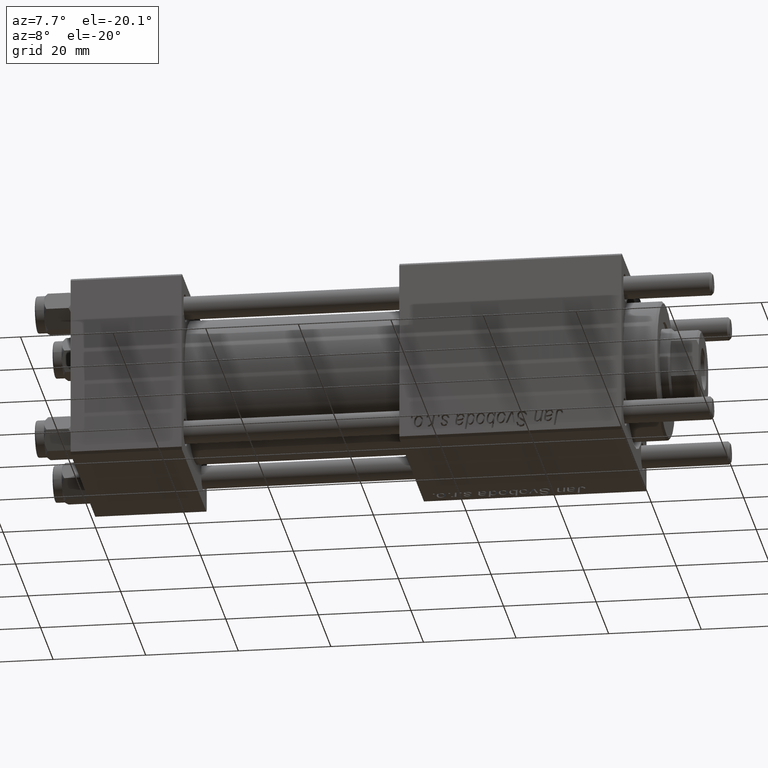
[diagram: clean part render]
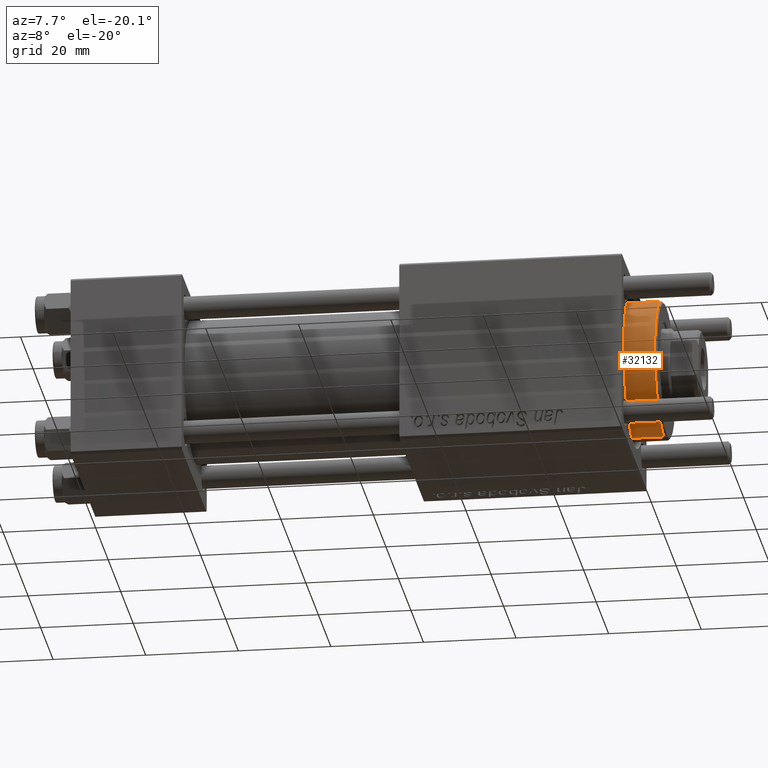
[diagram: same view with one face highlighted and labeled with its STEP entity id]
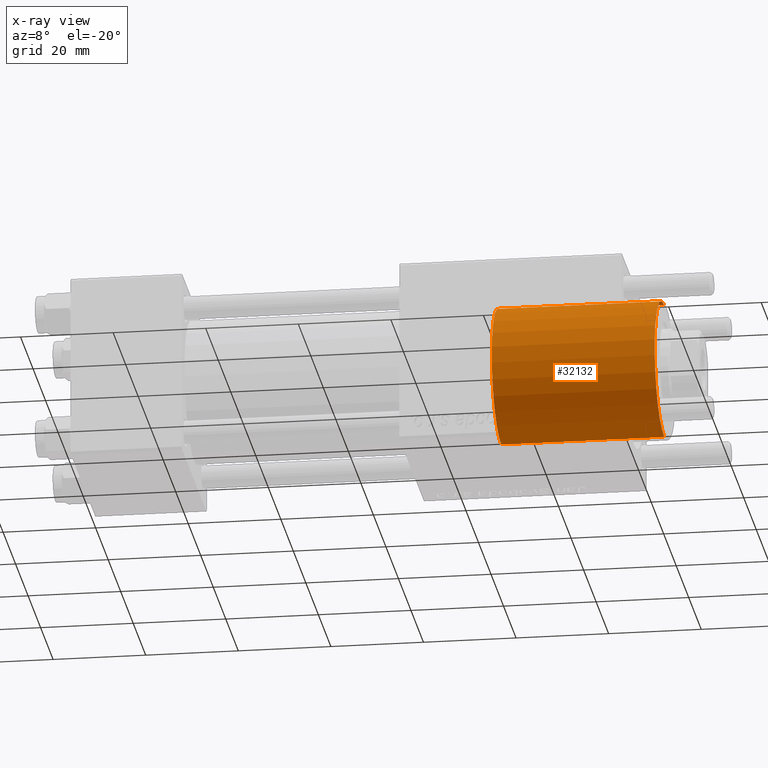
[diagram: x-ray of the same camera — body ghosted, the highlighted face saturated]
A machine part, auxiliary view. The second image highlights one B-rep face of the part: STEP entity #32132.
The next image is the same camera in x-ray: the body ghosted, the highlighted face saturated — about 0% of this face is hidden behind the body in this view.
In plain terms, the highlighted cylindrical surface (partial cylindrical patch) has radius 15 mm, axis along (-1, -0, 0).
Its self-contained STEP definition (entity closure, byte-faithful):
#2417 = FACE_OUTER_BOUND ( 'NONE', #7549, .T. ) ;
#5174 = CARTESIAN_POINT ( 'NONE',  ( 0.000000000000000000, 0.000000000000000000, 35.19999999999999574 ) ) ;
#5455 = EDGE_CURVE ( 'NONE', #55922, #46529, #11086, .T. ) ;
#6779 = DIRECTION ( 'NONE',  ( -0.000000000000000000, -0.000000000000000000, -1.000000000000000000 ) ) ;
#7549 = EDGE_LOOP ( 'NONE', ( #55498, #45363, #14214, #13501 ) ) ;
#9714 = CARTESIAN_POINT ( 'NONE',  ( -15.00000000000000000, 0.000000000000000000, 28.69999999999999929 ) ) ;
#10612 = DIRECTION ( 'NONE',  ( 1.000000000000000000, 0.000000000000000000, 0.000000000000000000 ) ) ;
#11086 = LINE ( 'NONE', #38001, #13369 ) ;
#13369 = VECTOR ( 'NONE', #6779, 1000.000000000000000 ) ;
#13501 = ORIENTED_EDGE ( 'NONE', *, *, #17017, .T. ) ;
#13734 = LINE ( 'NONE', #9714, #19222 ) ;
#14214 = ORIENTED_EDGE ( 'NONE', *, *, #34381, .T. ) ;
#17017 = EDGE_CURVE ( 'NONE', #19064, #46529, #36211, .T. ) ;
#17923 = AXIS2_PLACEMENT_3D ( 'NONE', #5174, #35855, #10612 ) ;
#18227 = CARTESIAN_POINT ( 'NONE',  ( -15.00000000000000000, 0.000000000000000000, 0.000000000000000000 ) ) ;
#18467 = EDGE_CURVE ( 'NONE', #55922, #40244, #51796, .T. ) ;
#19064 = VERTEX_POINT ( 'NONE', #18227 ) ;
#19222 = VECTOR ( 'NONE', #40388, 1000.000000000000000 ) ;
#19717 = AXIS2_PLACEMENT_3D ( 'NONE', #40006, #22803, #35144 ) ;
#22803 = DIRECTION ( 'NONE',  ( 0.000000000000000000, 0.000000000000000000, 1.000000000000000000 ) ) ;
#29250 = CARTESIAN_POINT ( 'NONE',  ( 15.00000000000000000, 1.836970198721029589E-15, 35.19999999999999574 ) ) ;
#32132 = ADVANCED_FACE ( 'NONE', ( #2417 ), #33098, .T. ) ;
#33098 = CYLINDRICAL_SURFACE ( 'NONE', #40171, 15.00000000000000000 ) ;
#33289 = CARTESIAN_POINT ( 'NONE',  ( 15.00000000000000000, 1.836970198721029589E-15, 0.000000000000000000 ) ) ;
#33943 = DIRECTION ( 'NONE',  ( -1.000000000000000000, 0.000000000000000000, 0.000000000000000000 ) ) ;
#34381 = EDGE_CURVE ( 'NONE', #40244, #19064, #13734, .T. ) ;
#35144 = DIRECTION ( 'NONE',  ( 1.000000000000000000, 0.000000000000000000, 0.000000000000000000 ) ) ;
#35855 = DIRECTION ( 'NONE',  ( 0.000000000000000000, 0.000000000000000000, -1.000000000000000000 ) ) ;
#36211 = CIRCLE ( 'NONE', #19717, 15.00000000000000000 ) ;
#38001 = CARTESIAN_POINT ( 'NONE',  ( 15.00000000000000000, 1.836970198721029589E-15, 28.69999999999999929 ) ) ;
#40006 = CARTESIAN_POINT ( 'NONE',  ( 0.000000000000000000, 0.000000000000000000, 0.000000000000000000 ) ) ;
#40171 = AXIS2_PLACEMENT_3D ( 'NONE', #50578, #55714, #33943 ) ;
#40244 = VERTEX_POINT ( 'NONE', #54420 ) ;
#40388 = DIRECTION ( 'NONE',  ( -0.000000000000000000, -0.000000000000000000, -1.000000000000000000 ) ) ;
#45363 = ORIENTED_EDGE ( 'NONE', *, *, #18467, .T. ) ;
#46529 = VERTEX_POINT ( 'NONE', #33289 ) ;
#50578 = CARTESIAN_POINT ( 'NONE',  ( 0.000000000000000000, 0.000000000000000000, 28.69999999999999929 ) ) ;
#51796 = CIRCLE ( 'NONE', #17923, 15.00000000000000000 ) ;
#54420 = CARTESIAN_POINT ( 'NONE',  ( -15.00000000000000000, 0.000000000000000000, 35.19999999999999574 ) ) ;
#55498 = ORIENTED_EDGE ( 'NONE', *, *, #5455, .F. ) ;
#55714 = DIRECTION ( 'NONE',  ( -0.000000000000000000, -0.000000000000000000, -1.000000000000000000 ) ) ;
#55922 = VERTEX_POINT ( 'NONE', #29250 ) ;